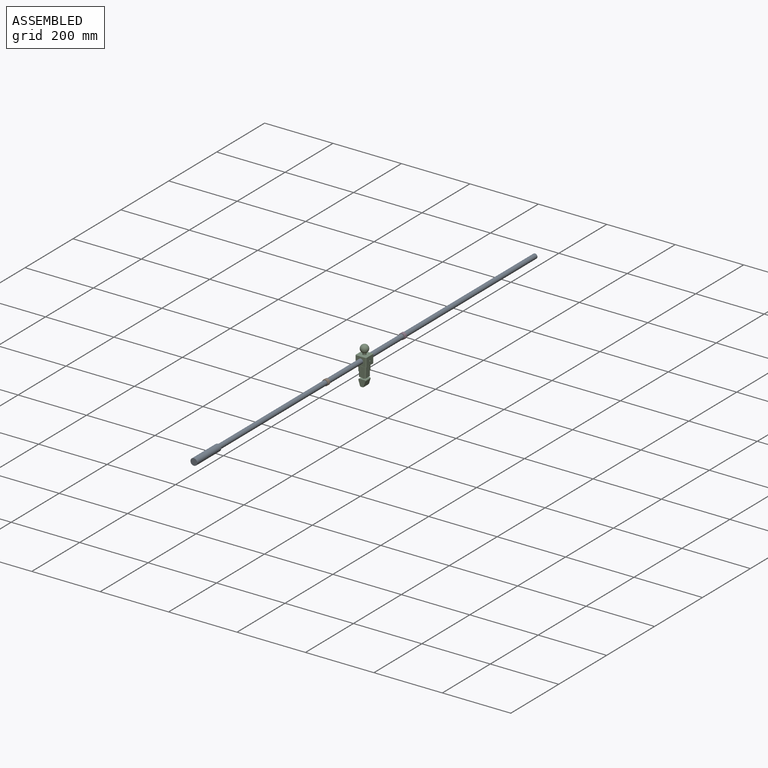
[diagram: assembled view]
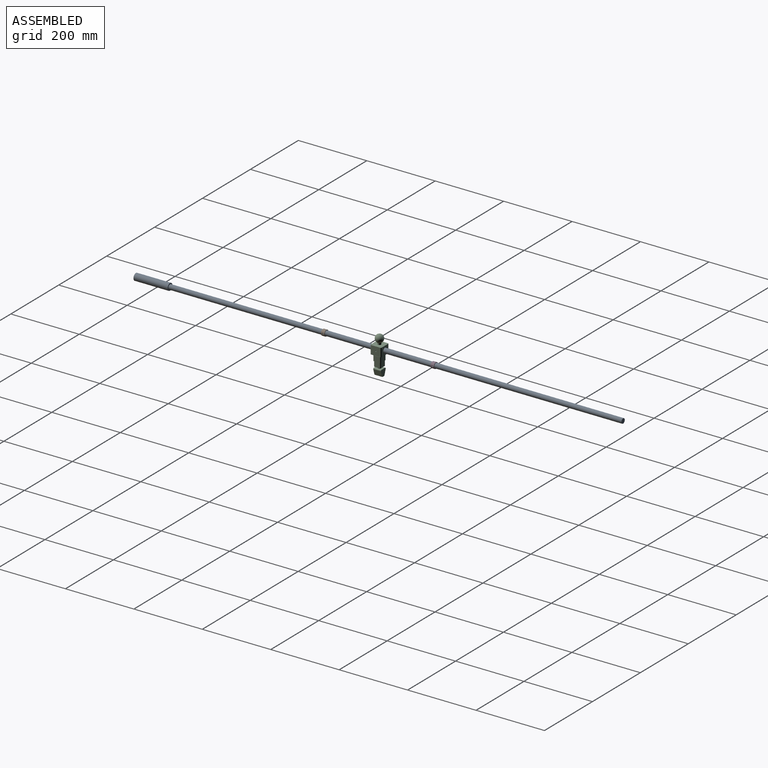
[diagram: assembled view, second angle]
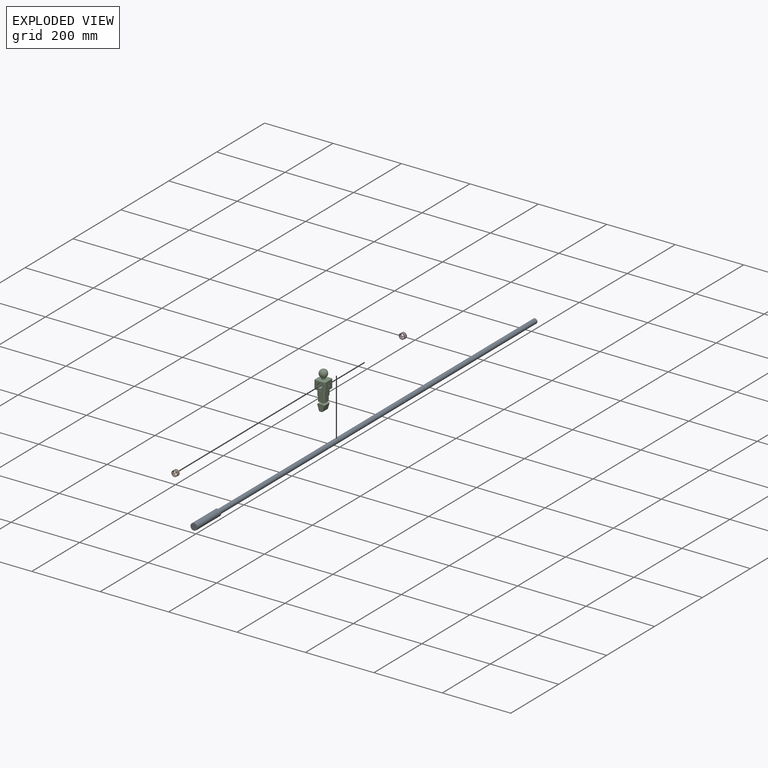
[diagram: exploded view]
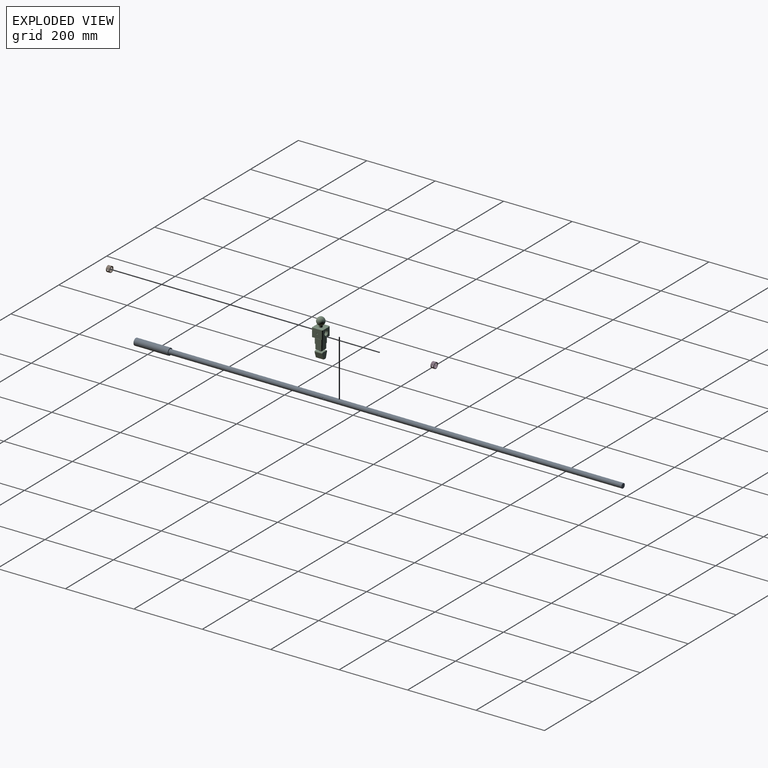
[diagram: exploded view, second angle]
ASSEMBLY  parts=4 mates=6
PART A: 8 faces, bbox 1424x20x20 mm
  f0: plane 20x20mm, normal (-1,0,0), area 314.2mm2, adj f1
  f1: cylinder r=10mm len=100mm, axis (-1,0,0), area 6283.2mm2, adj f0,f2
  f2: plane 20x20mm, normal (1,0,0), area 160.2mm2, adj f1,f3
  f3: cylinder r=7mm len=1324mm, axis (-1,0,0), area 58163.8mm2, adj f2,f4,f5,f6,f7
  f4: plane 14x14mm, normal (1,0,0), area 153.9mm2, adj f3
  f5: cylinder r=1.9mm len=14mm, axis (0,-1,0), area 164mm2, adj f3
  f6: cylinder r=1.9mm len=14mm, axis (0,-1,0), area 164mm2, adj f3
  f7: cylinder r=1.9mm len=14mm, axis (0,-1,0), area 164mm2, adj f3
PART B: 6 faces, bbox 17.3x10x17.3 mm
  f0: cylinder r=7.15mm len=14.3mm, axis (0,1,0), area 426.4mm2, adj f2,f3,f4,f5
  f1: cylinder r=8.65mm len=17.3mm, axis (0,1,0), area 520.7mm2, adj f2,f3,f4,f5
  f2: plane 17.3x17.3mm, normal (0,-1,0), area 74.5mm2, adj f0,f1
  f3: plane 17.3x17.3mm, normal (0,1,0), area 74.5mm2, adj f0,f1
  f4: cylinder r=1.9mm len=3.8mm, axis (1,0,0), area 18.2mm2, adj f0,f1
  f5: cylinder r=1.9mm len=3.8mm, axis (1,0,0), area 18.2mm2, adj f0,f1
PART C: 46 faces, bbox 31.8x31.8x109.2 mm
  f0: cylinder r=1.9mm len=9.01mm, axis (1,0,0), area 106mm2, adj f23,f45
  f1: plane 22.2x5.84mm, normal (0,0,-1), area 129.7mm2, adj f2,f3,f28,f29
  f2: plane 20.37x20mm, normal (0,-1,0), area 310.4mm2, adj f1,f14,f26,f27,f28,f29,f38,f39
  f3: plane 20.37x20mm, normal (0,1,0), area 310.4mm2, adj f1,f14,f26,f27,f28,f29,f38,f39
  f4: cylinder r=5mm len=10mm, axis (0,0,-1), area 155.3mm2, adj f5,f22
  f5: sphere r=11.5mm, area 1579.3mm2, adj f4
  f6: plane 22.2x22.2mm, normal (0,0,-1), area 92.8mm2, adj f9,f10,f11,f12,f15,f17,f18,f19
  f7: cylinder r=5mm len=10mm, axis (0,0,-1), area 94.2mm2, adj f8,f20
  f8: plane 22.2x22.2mm, normal (0,0,1), area 408.9mm2, adj f7,f9,f10,f11,f12,f40,f41,f42
  f9: plane 17.2x15mm, normal (-1,0,0), area 258mm2, adj f6,f8,f40,f42
  f10: plane 17.2x15mm, normal (1,0,0), area 258mm2, adj f6,f8,f41,f43
  f11: plane 17.2x15mm, normal (0,-1,0), area 258mm2, adj f6,f8,f42,f43
  f12: plane 17.2x15mm, normal (0,1,0), area 258mm2, adj f6,f8,f40,f41
  f13: cylinder r=5mm len=10mm, axis (0,0,-1), area 138.2mm2, adj f14,f16
  f14: plane 22.2x15.37mm, normal (0,0,1), area 262.6mm2, adj f2,f3,f13,f38,f39
  f15: plane 15x15mm, normal (-1,0,0), area 225mm2, adj f6,f16,f34,f36
  f16: plane 20x20mm, normal (0,0,-1), area 316.1mm2, adj f13,f15,f17,f18,f19,f34,f35,f36
  f17: plane 15x15mm, normal (1,0,0), area 225mm2, adj f6,f16,f35,f37
  f18: plane 15x15mm, normal (0,-1,0), area 225mm2, adj f6,f16,f36,f37
  f19: plane 15x15mm, normal (0,1,0), area 225mm2, adj f6,f16,f34,f35
  f20: plane 31.8x31.8mm, normal (0,0,-1), area 927.3mm2, adj f7,f21,f23,f24,f25,f30,f31,f32
  f21: plane 26.8x25mm, normal (1,0,0), area 658.7mm2, adj f20,f22,f30,f32,f44
  f22: plane 31.8x31.8mm, normal (0,0,1), area 927.3mm2, adj f4,f21,f23,f24,f25,f30,f31,f32
  f23: plane 26.8x25mm, normal (-1,0,0), area 658.7mm2, adj f0,f20,f22,f31,f33
  f24: plane 26.8x25mm, normal (0,-1,0), area 509.4mm2, adj f20,f22,f32,f33,f45
  f25: plane 26.8x25mm, normal (0,1,0), area 509.4mm2, adj f20,f22,f30,f31,f45
  f26: plane 22.2x15mm, normal (0.95,0,-0.3), area 349.4mm2, adj f2,f3,f28,f39
  f27: plane 22.2x15mm, normal (-0.95,0,-0.3), area 349.4mm2, adj f2,f3,f29,f38
  f28: cylinder r=2.5mm len=22.2mm, axis (0,-1,0), area 70.1mm2, adj f1,f2,f3,f26
  f29: cylinder r=2.5mm len=22.2mm, axis (0,1,0), area 70.1mm2, adj f1,f2,f3,f27
  f30: cylinder r=2.5mm len=25mm, axis (0,0,1), area 98.2mm2, adj f20,f21,f22,f25
  f31: cylinder r=2.5mm len=25mm, axis (0,0,-1), area 98.2mm2, adj f20,f22,f23,f25
  f32: cylinder r=2.5mm len=25mm, axis (0,0,-1), area 98.2mm2, adj f20,f21,f22,f24
  f33: cylinder r=2.5mm len=25mm, axis (0,0,1), area 98.2mm2, adj f20,f22,f23,f24
  f34: cylinder r=2.5mm len=15mm, axis (0,0,-1), area 58.9mm2, adj f6,f15,f16,f19
  f35: cylinder r=2.5mm len=15mm, axis (0,0,1), area 58.9mm2, adj f6,f16,f17,f19
  f36: cylinder r=2.5mm len=15mm, axis (0,0,1), area 58.9mm2, adj f6,f15,f16,f18
  f37: cylinder r=2.5mm len=15mm, axis (0,0,-1), area 58.9mm2, adj f6,f16,f17,f18
  f38: cylinder r=2.5mm len=22.2mm, axis (0,1,0), area 104.2mm2, adj f2,f3,f14,f27
  f39: cylinder r=2.5mm len=22.2mm, axis (0,-1,0), area 104.2mm2, adj f2,f3,f14,f26
  f40: cylinder r=2.5mm len=15mm, axis (0,0,-1), area 58.9mm2, adj f6,f8,f9,f12
  f41: cylinder r=2.5mm len=15mm, axis (0,0,1), area 58.9mm2, adj f6,f8,f10,f12
  f42: cylinder r=2.5mm len=15mm, axis (0,0,1), area 58.9mm2, adj f6,f8,f9,f11
  f43: cylinder r=2.5mm len=15mm, axis (0,0,-1), area 58.9mm2, adj f6,f8,f10,f11
  f44: cylinder r=1.9mm len=9.01mm, axis (1,0,0), area 106mm2, adj f21,f45
  f45: cylinder r=7.15mm len=31.8mm, axis (0,1,0), area 1405.7mm2, adj f0,f24,f25,f44
PART D: same geometry as B
PLACE A rot(axis=(0,0,1),90deg) t=(-387.98,-226,-333)mm
PLACE B t=(-387.98,326,-333)mm
PLACE C t=(-387.98,486,-333)mm
PLACE D t=(-387.98,646,-333)mm
MATE cylindrical D.f1 <-> A.f1  axis (0,-1,0) through (-387.98,641,-333)mm
MATE cylindrical B.f4 <-> A.f7  axis (1,0,0) through (-379.31,326,-333)mm
MATE cylindrical B.f1 <-> A.f1  axis (0,-1,0) through (-387.98,321,-333)mm
MATE cylindrical C.f45 <-> A.f1  axis (0,1,0) through (-387.98,486,-333)mm
MATE cylindrical C.f0 <-> A.f6  axis (1,0,0) through (-372.08,486,-333)mm
MATE cylindrical D.f4 <-> A.f5  axis (1,0,0) through (-379.31,646,-333)mm
